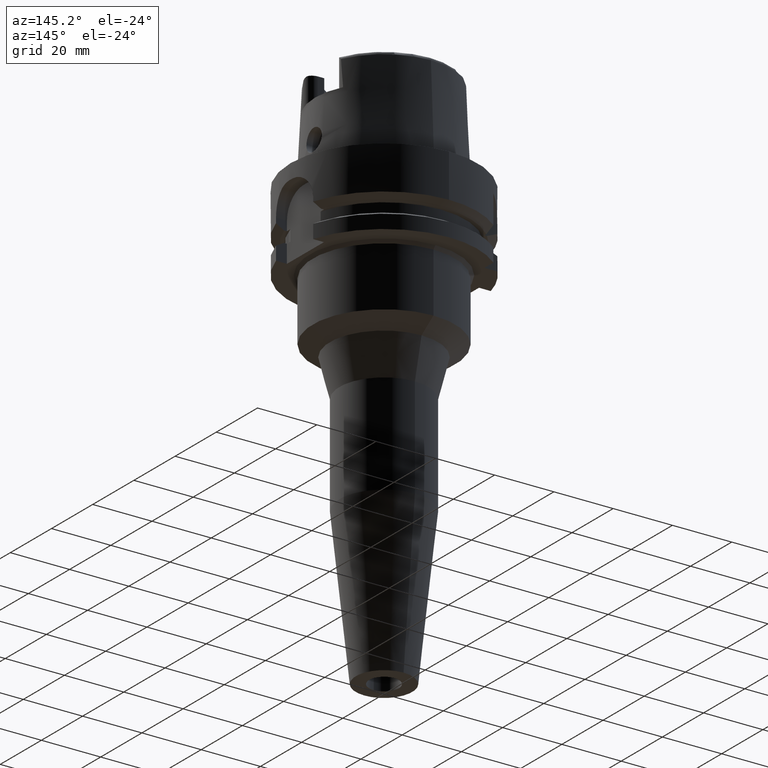
[diagram: clean part render]
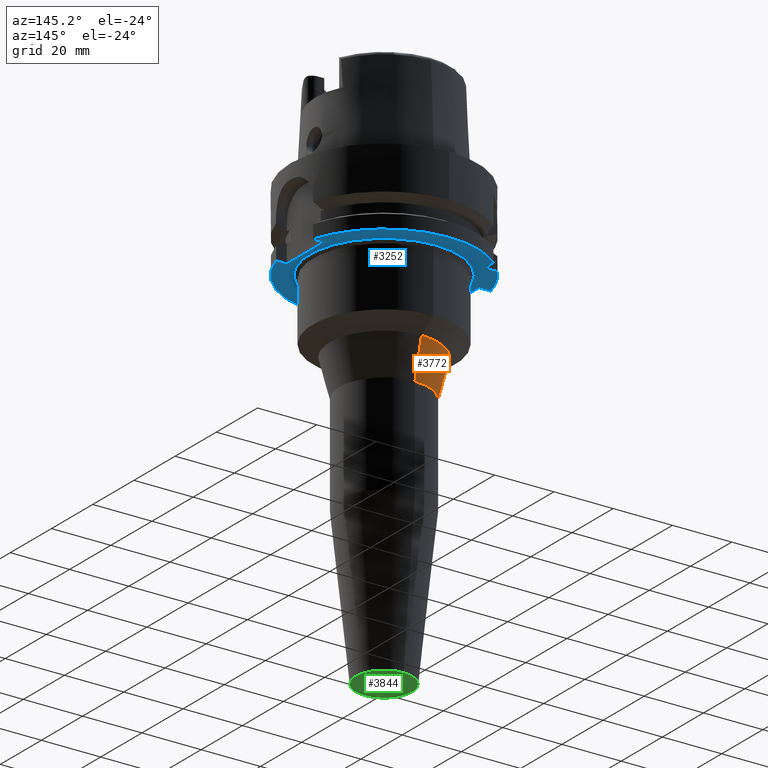
[diagram: same view with three faces highlighted in distinct colors, each labeled with its STEP entity id]
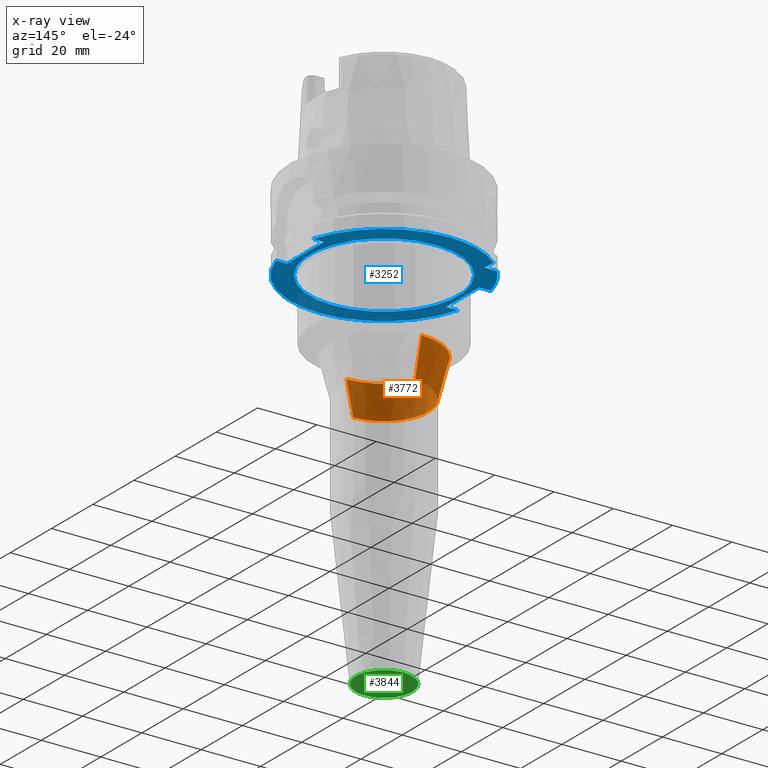
[diagram: x-ray of the same camera — body ghosted, the three highlighted faces saturated]
A machine part, auxiliary view with three faces highlighted in distinct colors.
The next image is the same camera in x-ray (body ghosted, the three faces saturated) — at least one of them is partly hidden behind the body in this view.
Their STEP definitions:

[orange] entity #3772 — the highlighted conical surface has half-angle 14.2 deg.
#1668=CARTESIAN_POINT('',(0.E0,0.E0,-5.089165685926E1));
#1669=DIRECTION('',(0.E0,0.E0,-1.E0));
#1670=DIRECTION('',(0.E0,-1.E0,0.E0));
#1671=AXIS2_PLACEMENT_3D('',#1668,#1669,#1670);
#1691=DIRECTION('',(0.E0,-2.453073858788E-1,-9.694453498951E-1));
#1692=VECTOR('',#1691,1.316870841881E1);
#1693=CARTESIAN_POINT('',(0.E0,1.823038143762E1,-5.089165685926E1));
#1694=LINE('',#1693,#1692);
#1714=DIRECTION('',(0.E0,2.453073858788E-1,-9.694453498951E-1));
#1715=VECTOR('',#1714,1.316870841881E1);
#1716=CARTESIAN_POINT('',(0.E0,-1.823038143762E1,-5.089165685926E1));
#1717=LINE('',#1716,#1715);
#1721=CARTESIAN_POINT('',(0.E0,0.E0,-6.3658E1));
#1722=DIRECTION('',(0.E0,0.E0,-1.E0));
#1723=DIRECTION('',(0.E0,-1.E0,0.E0));
#1724=AXIS2_PLACEMENT_3D('',#1721,#1722,#1723);
#2444=CARTESIAN_POINT('',(0.E0,1.5E1,-6.3658E1));
#2445=VERTEX_POINT('',#2444);
#2446=CARTESIAN_POINT('',(0.E0,-1.5E1,-6.3658E1));
#2447=VERTEX_POINT('',#2446);
#2448=CARTESIAN_POINT('',(0.E0,1.823038143762E1,-5.089165685926E1));
#2449=VERTEX_POINT('',#2448);
#2450=CARTESIAN_POINT('',(0.E0,-1.823038143762E1,-5.089165685926E1));
#2451=VERTEX_POINT('',#2450);
#3760=CARTESIAN_POINT('',(0.E0,0.E0,-5.727482842963E1));
#3761=DIRECTION('',(0.E0,0.E0,1.E0));
#3762=DIRECTION('',(0.E0,1.E0,0.E0));
#3763=AXIS2_PLACEMENT_3D('',#3760,#3761,#3762);
#3764=CONICAL_SURFACE('',#3763,1.661519071881E1,1.42E1);
#3765=ORIENTED_EDGE('',*,*,#3750,.F.);
#3766=ORIENTED_EDGE('',*,*,#3727,.F.);
#3767=ORIENTED_EDGE('',*,*,#3754,.T.);
#3769=ORIENTED_EDGE('',*,*,#3768,.T.);
#3770=EDGE_LOOP('',(#3765,#3766,#3767,#3769));
#3771=FACE_OUTER_BOUND('',#3770,.F.);
#1672=CIRCLE('',#1671,1.823038143762E1);
#1725=CIRCLE('',#1724,1.5E1);
#3727=EDGE_CURVE('',#2451,#2449,#1672,.T.);
#3750=EDGE_CURVE('',#2449,#2445,#1694,.T.);
#3754=EDGE_CURVE('',#2451,#2447,#1717,.T.);
#3768=EDGE_CURVE('',#2447,#2445,#1725,.T.);
#3772=ADVANCED_FACE('',(#3771),#3764,.T.);

[blue] entity #3252 — the highlighted planar face has unit normal (0, 0, 1).
#929=DIRECTION('',(0.E0,1.E0,0.E0));
#930=VECTOR('',#929,1.6E1);
#931=CARTESIAN_POINT('',(-2.65E1,-8.E0,-2.6E1));
#932=LINE('',#931,#930);
#966=DIRECTION('',(-1.E0,-1.540316790609E-13,0.E0));
#967=VECTOR('',#966,4.336187047278E0);
#968=CARTESIAN_POINT('',(-2.E1,2.E1,-2.6E1));
#969=LINE('',#968,#967);
#973=CARTESIAN_POINT('',(0.E0,0.E0,-2.6E1));
#974=DIRECTION('',(0.E0,0.E0,1.E0));
#975=DIRECTION('',(-7.725773665802E-1,6.349206349206E-1,0.E0));
#976=AXIS2_PLACEMENT_3D('',#973,#974,#975);
#981=DIRECTION('',(-1.E0,-8.686570378871E-14,0.E0));
#982=VECTOR('',#981,3.967195473163E0);
#983=CARTESIAN_POINT('',(-2.65E1,-8.E0,-2.6E1));
#984=LINE('',#983,#982);
#988=CARTESIAN_POINT('',(0.E0,0.E0,-2.6E1));
#989=DIRECTION('',(0.E0,0.E0,1.E0));
#990=DIRECTION('',(-9.672125547036E-1,-2.539682539683E-1,0.E0));
#991=AXIS2_PLACEMENT_3D('',#988,#989,#990);
#996=CARTESIAN_POINT('',(0.E0,0.E0,-2.6E1));
#997=DIRECTION('',(0.E0,0.E0,1.E0));
#998=DIRECTION('',(0.E0,-1.E0,0.E0));
#999=AXIS2_PLACEMENT_3D('',#996,#997,#998);
#1004=DIRECTION('',(-1.E0,-6.889739586341E-14,0.E0));
#1005=VECTOR('',#1004,3.686917696248E0);
#1006=CARTESIAN_POINT('',(3.018691769625E1,-9.E0,-2.6E1));
#1007=LINE('',#1006,#1005);
#1011=DIRECTION('',(0.E0,1.E0,0.E0));
#1012=VECTOR('',#1011,1.8E1);
#1013=CARTESIAN_POINT('',(2.65E1,-9.E0,-2.6E1));
#1014=LINE('',#1013,#1012);
#1018=CARTESIAN_POINT('',(0.E0,0.E0,-2.6E1));
#1019=DIRECTION('',(0.E0,0.E0,1.E0));
#1020=DIRECTION('',(9.583148474999E-1,2.857142857143E-1,0.E0));
#1021=AXIS2_PLACEMENT_3D('',#1018,#1019,#1020);
#1026=CARTESIAN_POINT('',(0.E0,0.E0,-2.6E1));
#1027=DIRECTION('',(0.E0,0.E0,1.E0));
#1028=DIRECTION('',(0.E0,1.E0,0.E0));
#1029=AXIS2_PLACEMENT_3D('',#1026,#1027,#1028);
#1034=CARTESIAN_POINT('',(0.E0,0.E0,-2.6E1));
#1035=DIRECTION('',(0.E0,0.E0,-1.E0));
#1036=DIRECTION('',(0.E0,-1.E0,0.E0));
#1037=AXIS2_PLACEMENT_3D('',#1034,#1035,#1036);
#1042=CARTESIAN_POINT('',(0.E0,0.E0,-2.6E1));
#1043=DIRECTION('',(0.E0,0.E0,-1.E0));
#1044=DIRECTION('',(0.E0,1.E0,0.E0));
#1045=AXIS2_PLACEMENT_3D('',#1042,#1043,#1044);
#1050=DIRECTION('',(1.556703139446E-13,1.E0,0.E0));
#1051=VECTOR('',#1050,4.336187047278E0);
#1052=CARTESIAN_POINT('',(-2.E1,2.E1,-2.6E1));
#1053=LINE('',#1052,#1051);
#1071=DIRECTION('',(-1.E0,7.275179563200E-14,0.E0));
#1072=VECTOR('',#1071,3.686917696248E0);
#1073=CARTESIAN_POINT('',(3.018691769625E1,9.E0,-2.6E1));
#1074=LINE('',#1073,#1072);
#1539=DIRECTION('',(-1.E0,8.776122650818E-14,0.E0));
#1540=VECTOR('',#1539,3.967195473163E0);
#1541=CARTESIAN_POINT('',(-2.65E1,8.E0,-2.6E1));
#1542=LINE('',#1541,#1540);
#2460=CARTESIAN_POINT('',(0.E0,2.5E1,-2.6E1));
#2461=VERTEX_POINT('',#2460);
#2462=CARTESIAN_POINT('',(0.E0,-2.5E1,-2.6E1));
#2463=VERTEX_POINT('',#2462);
#2464=CARTESIAN_POINT('',(-2.E1,2.E1,-2.6E1));
#2465=CARTESIAN_POINT('',(-2.E1,2.433618704728E1,-2.6E1));
#2466=VERTEX_POINT('',#2464);
#2467=VERTEX_POINT('',#2465);
#2468=CARTESIAN_POINT('',(-2.433618704728E1,2.E1,-2.6E1));
#2469=VERTEX_POINT('',#2468);
#2470=CARTESIAN_POINT('',(-3.046719547316E1,8.E0,-2.6E1));
#2471=VERTEX_POINT('',#2470);
#2472=CARTESIAN_POINT('',(-2.65E1,8.E0,-2.6E1));
#2473=VERTEX_POINT('',#2472);
#2474=CARTESIAN_POINT('',(-2.65E1,-8.E0,-2.6E1));
#2475=VERTEX_POINT('',#2474);
#2476=CARTESIAN_POINT('',(-3.046719547316E1,-8.E0,-2.6E1));
#2477=VERTEX_POINT('',#2476);
#2478=CARTESIAN_POINT('',(-1.294568961206E-14,-3.15E1,-2.6E1));
#2479=CARTESIAN_POINT('',(3.018691769625E1,-9.E0,-2.6E1));
#2480=VERTEX_POINT('',#2478);
#2481=VERTEX_POINT('',#2479);
#2482=CARTESIAN_POINT('',(2.65E1,-9.E0,-2.6E1));
#2483=VERTEX_POINT('',#2482);
#2484=CARTESIAN_POINT('',(2.65E1,9.E0,-2.6E1));
#2485=VERTEX_POINT('',#2484);
#2486=CARTESIAN_POINT('',(3.018691769625E1,9.E0,-2.6E1));
#2487=VERTEX_POINT('',#2486);
#2488=CARTESIAN_POINT('',(1.065814103640E-14,3.15E1,-2.6E1));
#2489=VERTEX_POINT('',#2488);
#3214=CARTESIAN_POINT('',(0.E0,0.E0,-2.6E1));
#3215=DIRECTION('',(0.E0,0.E0,1.E0));
#3216=DIRECTION('',(0.E0,1.E0,0.E0));
#3217=AXIS2_PLACEMENT_3D('',#3214,#3215,#3216);
#3218=PLANE('',#3217);
#3220=ORIENTED_EDGE('',*,*,#3219,.F.);
#3222=ORIENTED_EDGE('',*,*,#3221,.T.);
#3224=ORIENTED_EDGE('',*,*,#3223,.T.);
#3226=ORIENTED_EDGE('',*,*,#3225,.F.);
#3227=ORIENTED_EDGE('',*,*,#3191,.F.);
#3229=ORIENTED_EDGE('',*,*,#3228,.T.);
#3231=ORIENTED_EDGE('',*,*,#3230,.T.);
#3233=ORIENTED_EDGE('',*,*,#3232,.T.);
#3235=ORIENTED_EDGE('',*,*,#3234,.T.);
#3237=ORIENTED_EDGE('',*,*,#3236,.T.);
#3239=ORIENTED_EDGE('',*,*,#3238,.F.);
#3241=ORIENTED_EDGE('',*,*,#3240,.T.);
#3243=ORIENTED_EDGE('',*,*,#3242,.T.);
#3244=EDGE_LOOP('',(#3220,#3222,#3224,#3226,#3227,#3229,#3231,#3233,#3235,#3237,
#3239,#3241,#3243));
#3245=FACE_OUTER_BOUND('',#3244,.F.);
#3247=ORIENTED_EDGE('',*,*,#3246,.T.);
#3249=ORIENTED_EDGE('',*,*,#3248,.T.);
#3250=EDGE_LOOP('',(#3247,#3249));
#3251=FACE_BOUND('',#3250,.F.);
#977=CIRCLE('',#976,3.15E1);
#992=CIRCLE('',#991,3.15E1);
#1000=CIRCLE('',#999,3.15E1);
#1022=CIRCLE('',#1021,3.15E1);
#1030=CIRCLE('',#1029,3.15E1);
#1038=CIRCLE('',#1037,2.5E1);
#1046=CIRCLE('',#1045,2.5E1);
#3191=EDGE_CURVE('',#2475,#2473,#932,.T.);
#3219=EDGE_CURVE('',#2466,#2467,#1053,.T.);
#3221=EDGE_CURVE('',#2466,#2469,#969,.T.);
#3223=EDGE_CURVE('',#2469,#2471,#977,.T.);
#3225=EDGE_CURVE('',#2473,#2471,#1542,.T.);
#3228=EDGE_CURVE('',#2475,#2477,#984,.T.);
#3230=EDGE_CURVE('',#2477,#2480,#992,.T.);
#3232=EDGE_CURVE('',#2480,#2481,#1000,.T.);
#3234=EDGE_CURVE('',#2481,#2483,#1007,.T.);
#3236=EDGE_CURVE('',#2483,#2485,#1014,.T.);
#3238=EDGE_CURVE('',#2487,#2485,#1074,.T.);
#3240=EDGE_CURVE('',#2487,#2489,#1022,.T.);
#3242=EDGE_CURVE('',#2489,#2467,#1030,.T.);
#3246=EDGE_CURVE('',#2463,#2461,#1038,.T.);
#3248=EDGE_CURVE('',#2461,#2463,#1046,.T.);
#3252=ADVANCED_FACE('',(#3245,#3251),#3218,.F.);

[green] entity #3844 — the highlighted planar face has unit normal (0, 0, 1).
#1773=CARTESIAN_POINT('',(0.E0,0.E0,-1.5E2));
#1774=DIRECTION('',(0.E0,0.E0,1.E0));
#1775=DIRECTION('',(0.E0,-1.E0,0.E0));
#1776=AXIS2_PLACEMENT_3D('',#1773,#1774,#1775);
#1781=CARTESIAN_POINT('',(0.E0,0.E0,-1.5E2));
#1782=DIRECTION('',(0.E0,0.E0,1.E0));
#1783=DIRECTION('',(0.E0,1.E0,0.E0));
#1784=AXIS2_PLACEMENT_3D('',#1781,#1782,#1783);
#1789=CARTESIAN_POINT('',(0.E0,0.E0,-1.5E2));
#1790=DIRECTION('',(0.E0,0.E0,-1.E0));
#1791=DIRECTION('',(0.E0,-1.E0,0.E0));
#1792=AXIS2_PLACEMENT_3D('',#1789,#1790,#1791);
#1797=CARTESIAN_POINT('',(0.E0,0.E0,-1.5E2));
#1798=DIRECTION('',(0.E0,0.E0,-1.E0));
#1799=DIRECTION('',(0.E0,1.E0,0.E0));
#1800=AXIS2_PLACEMENT_3D('',#1797,#1798,#1799);
#2432=CARTESIAN_POINT('',(0.E0,5.E0,-1.5E2));
#2433=VERTEX_POINT('',#2432);
#2434=CARTESIAN_POINT('',(0.E0,-5.E0,-1.5E2));
#2435=VERTEX_POINT('',#2434);
#2436=CARTESIAN_POINT('',(0.E0,-9.500000000001E0,-1.5E2));
#2437=CARTESIAN_POINT('',(0.E0,9.500000000001E0,-1.5E2));
#2438=VERTEX_POINT('',#2436);
#2439=VERTEX_POINT('',#2437);
#3829=CARTESIAN_POINT('',(0.E0,0.E0,-1.5E2));
#3830=DIRECTION('',(0.E0,0.E0,1.E0));
#3831=DIRECTION('',(0.E0,1.E0,0.E0));
#3832=AXIS2_PLACEMENT_3D('',#3829,#3830,#3831);
#3833=PLANE('',#3832);
#3834=ORIENTED_EDGE('',*,*,#3808,.T.);
#3835=ORIENTED_EDGE('',*,*,#3824,.T.);
#3836=EDGE_LOOP('',(#3834,#3835));
#3837=FACE_OUTER_BOUND('',#3836,.F.);
#3839=ORIENTED_EDGE('',*,*,#3838,.T.);
#3841=ORIENTED_EDGE('',*,*,#3840,.T.);
#3842=EDGE_LOOP('',(#3839,#3841));
#3843=FACE_BOUND('',#3842,.F.);
#1777=CIRCLE('',#1776,9.500000000001E0);
#1785=CIRCLE('',#1784,9.500000000001E0);
#1793=CIRCLE('',#1792,5.E0);
#1801=CIRCLE('',#1800,5.E0);
#3808=EDGE_CURVE('',#2438,#2439,#1777,.T.);
#3824=EDGE_CURVE('',#2439,#2438,#1785,.T.);
#3838=EDGE_CURVE('',#2435,#2433,#1793,.T.);
#3840=EDGE_CURVE('',#2433,#2435,#1801,.T.);
#3844=ADVANCED_FACE('',(#3837,#3843),#3833,.F.);